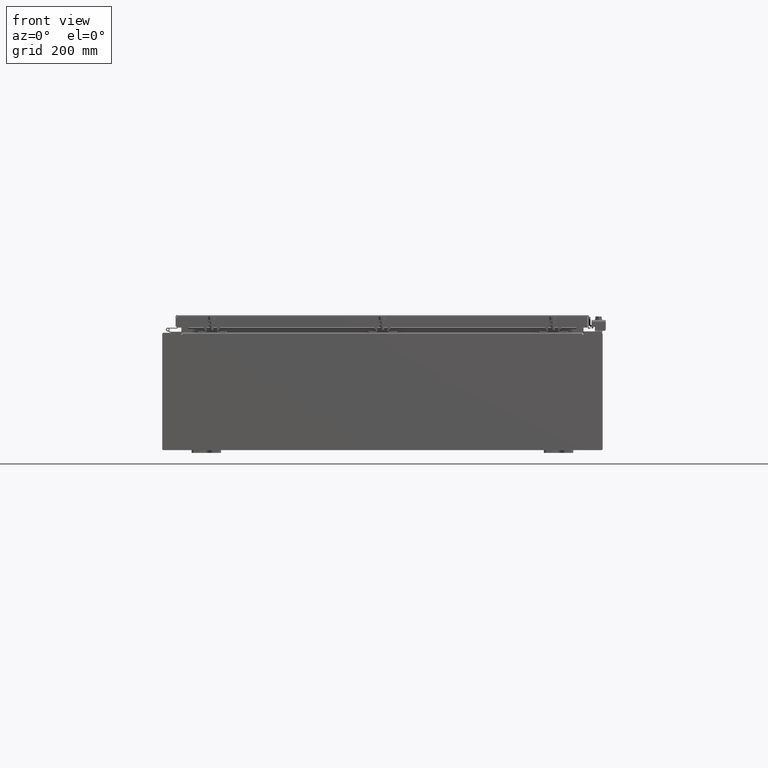
[diagram: clean part render]
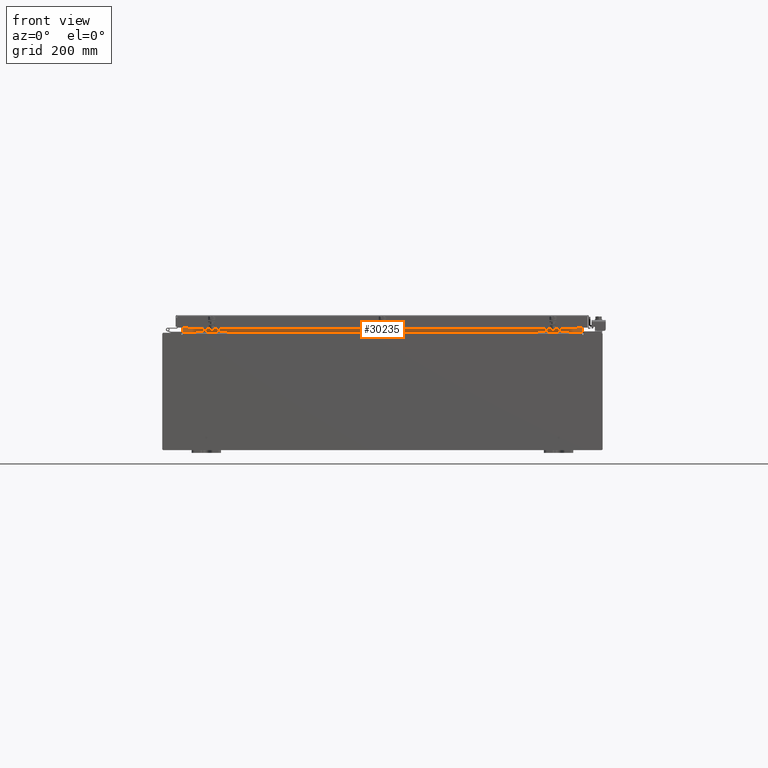
[diagram: same view with one face highlighted and labeled with its STEP entity id]
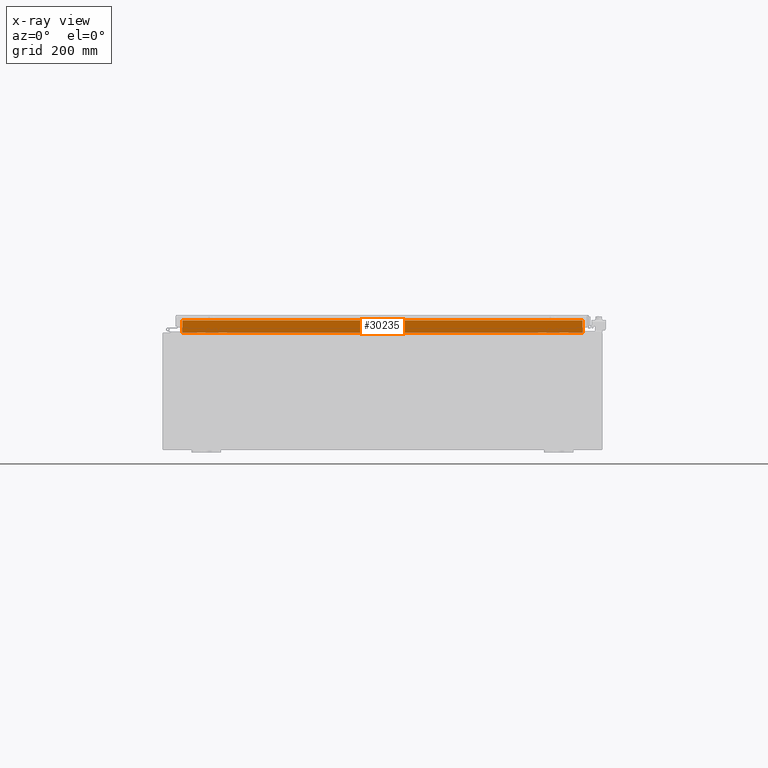
[diagram: x-ray of the same camera — body ghosted, the highlighted face saturated]
A machine part, front view. The second image highlights one B-rep face of the part: STEP entity #30235.
The next image is the same camera in x-ray: the body ghosted, the highlighted face saturated — about 0% of this face is hidden behind the body in this view.
In plain terms, the highlighted planar face has unit normal (0, -1, 0).
Its self-contained STEP definition (entity closure, byte-faithful):
#2736 = ORIENTED_EDGE ( 'NONE', *, *, #21437, .F. ) ;
#3539 = DIRECTION ( 'NONE',  ( 0.0000000000000000000, 1.000000000000000000, 0.0000000000000000000 ) ) ;
#3561 = DIRECTION ( 'NONE',  ( -0.0000000000000000000, -0.0000000000000000000, -1.000000000000000000 ) ) ;
#3845 = CARTESIAN_POINT ( 'NONE',  ( -13.63719999999999800, -1.300299999999999300, 4.837600000000003700 ) ) ;
#4053 = AXIS2_PLACEMENT_3D ( 'NONE', #13412, #3539, #26827 ) ;
#5064 = ORIENTED_EDGE ( 'NONE', *, *, #28176, .F. ) ;
#5921 = VECTOR ( 'NONE', #10840, 39.37007874015748100 ) ;
#6645 = ORIENTED_EDGE ( 'NONE', *, *, #34131, .F. ) ;
#7014 = VECTOR ( 'NONE', #3561, 39.37007874015748100 ) ;
#8500 = CARTESIAN_POINT ( 'NONE',  ( 13.63720000000000400, -1.300299999999999800, 4.925300000000004500 ) ) ;
#10239 = CARTESIAN_POINT ( 'NONE',  ( -13.63719999999999800, -1.300299999999999800, 4.000000000000004400 ) ) ;
#10840 = DIRECTION ( 'NONE',  ( -1.000000000000000000, -0.0000000000000000000, -0.0000000000000000000 ) ) ;
#11113 = VECTOR ( 'NONE', #31852, 39.37007874015748100 ) ;
#11739 = VERTEX_POINT ( 'NONE', #26845 ) ;
#13086 = FACE_OUTER_BOUND ( 'NONE', #25463, .T. ) ;
#13412 = CARTESIAN_POINT ( 'NONE',  ( 0.0000000000000000000, -1.300299999999999800, 0.0000000000000000000 ) ) ;
#13689 = LINE ( 'NONE', #30832, #5921 ) ;
#17766 = CARTESIAN_POINT ( 'NONE',  ( 13.63720000000000000, -1.300299999999999800, 4.013000000000003500 ) ) ;
#17893 = CARTESIAN_POINT ( 'NONE',  ( -13.63719999999999800, -1.300299999999999800, 4.013000000000003500 ) ) ;
#18105 = VECTOR ( 'NONE', #41332, 39.37007874015748100 ) ;
#18321 = VERTEX_POINT ( 'NONE', #17766 ) ;
#21437 = EDGE_CURVE ( 'NONE', #34274, #39148, #13689, .T. ) ;
#21860 = CARTESIAN_POINT ( 'NONE',  ( 13.63720000000000400, -1.300299999999999800, 4.837600000000003700 ) ) ;
#23479 = PLANE ( 'NONE',  #4053 ) ;
#25463 = EDGE_LOOP ( 'NONE', ( #42141, #2736, #5064, #6645 ) ) ;
#26827 = DIRECTION ( 'NONE',  ( 0.0000000000000000000, -0.0000000000000000000, 1.000000000000000000 ) ) ;
#26845 = CARTESIAN_POINT ( 'NONE',  ( -13.63719999999999800, -1.300299999999999800, 4.013000000000003500 ) ) ;
#28176 = EDGE_CURVE ( 'NONE', #18321, #34274, #37793, .T. ) ;
#30235 = ADVANCED_FACE ( 'NONE', ( #13086 ), #23479, .T. ) ;
#30832 = CARTESIAN_POINT ( 'NONE',  ( 13.63720000000000400, -1.300299999999999300, 4.837600000000003700 ) ) ;
#31852 = DIRECTION ( 'NONE',  ( -0.0000000000000000000, -0.0000000000000000000, 1.000000000000000000 ) ) ;
#33631 = LINE ( 'NONE', #10239, #7014 ) ;
#34131 = EDGE_CURVE ( 'NONE', #11739, #18321, #35933, .T. ) ;
#34274 = VERTEX_POINT ( 'NONE', #21860 ) ;
#35933 = LINE ( 'NONE', #17893, #18105 ) ;
#37793 = LINE ( 'NONE', #8500, #11113 ) ;
#39148 = VERTEX_POINT ( 'NONE', #3845 ) ;
#39376 = EDGE_CURVE ( 'NONE', #39148, #11739, #33631, .T. ) ;
#41332 = DIRECTION ( 'NONE',  ( 1.000000000000000000, 0.0000000000000000000, -2.003232330437526000E-017 ) ) ;
#42141 = ORIENTED_EDGE ( 'NONE', *, *, #39376, .F. ) ;